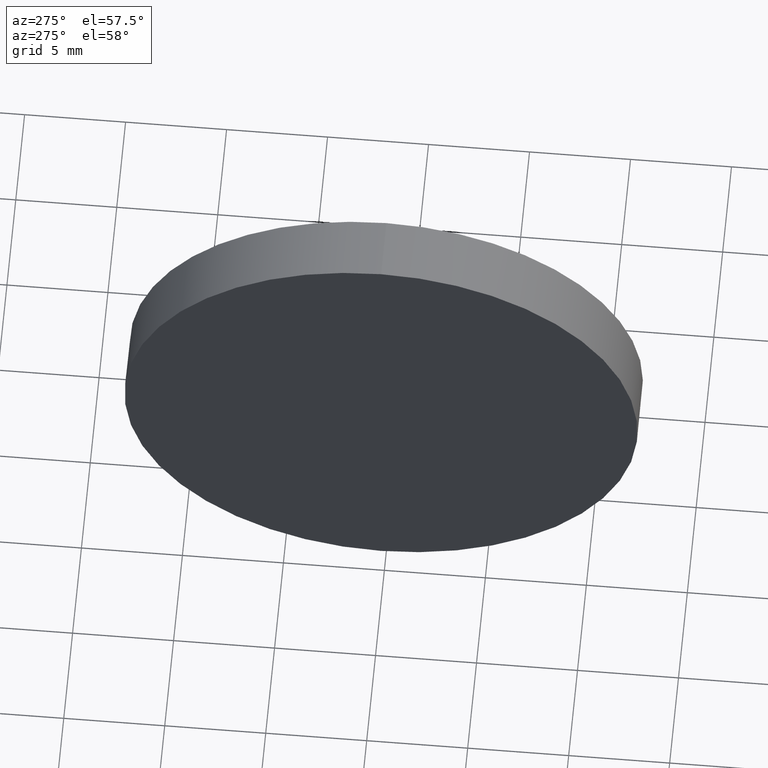
[diagram: clean part render]
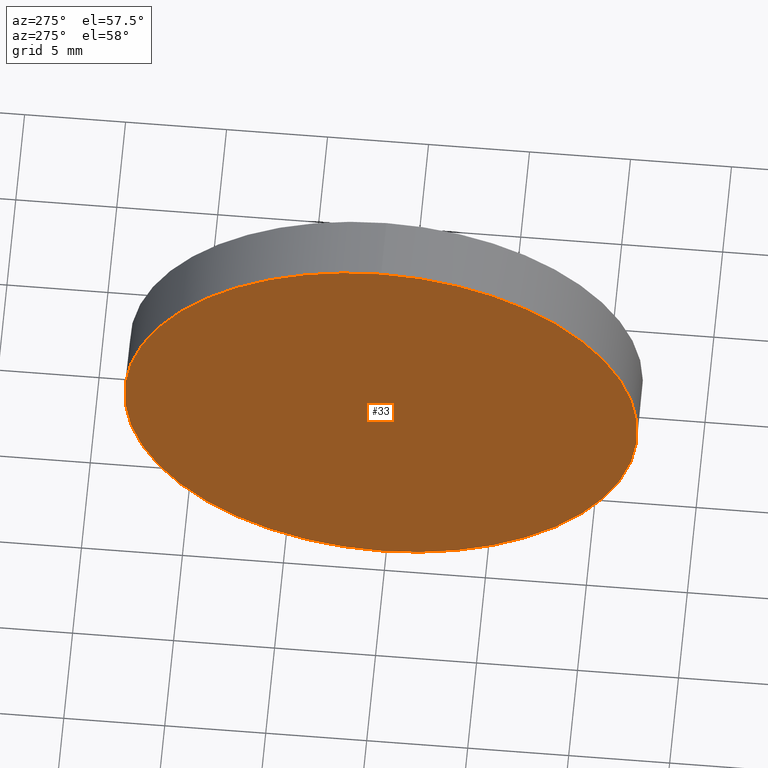
[diagram: same view with one face highlighted and labeled with its STEP entity id]
A machine part, auxiliary view. The second image highlights one B-rep face of the part: STEP entity #33.
In plain terms, the highlighted planar face has unit normal (1, 0, 0).
Its self-contained STEP definition (entity closure, byte-faithful):
#13 = PLANE ( 'NONE',  #126 ) ;
#21 = CARTESIAN_POINT ( 'NONE',  ( 115.7736064308381300, 65.23355492641219700, 0.0000000000000000000 ) ) ;
#28 = EDGE_CURVE ( 'NONE', #76, #54, #32, .T. ) ;
#29 = CARTESIAN_POINT ( 'NONE',  ( 115.7736064308381300, 65.23355492641219700, 0.0000000000000000000 ) ) ;
#32 = CIRCLE ( 'NONE', #49, 12.70000000000000300 ) ;
#33 = ADVANCED_FACE ( 'NONE', ( #120 ), #13, .F. ) ;
#42 = ORIENTED_EDGE ( 'NONE', *, *, #133, .T. ) ;
#43 = DIRECTION ( 'NONE',  ( -1.000000000000000000, -0.0000000000000000000, -0.0000000000000000000 ) ) ;
#49 = AXIS2_PLACEMENT_3D ( 'NONE', #29, #43, #59 ) ;
#54 = VERTEX_POINT ( 'NONE', #73 ) ;
#57 = AXIS2_PLACEMENT_3D ( 'NONE', #21, #65, #160 ) ;
#59 = DIRECTION ( 'NONE',  ( 0.0000000000000000000, 0.0000000000000000000, 1.000000000000000000 ) ) ;
#65 = DIRECTION ( 'NONE',  ( -1.000000000000000000, -0.0000000000000000000, -0.0000000000000000000 ) ) ;
#73 = CARTESIAN_POINT ( 'NONE',  ( 115.7736064308381300, 65.23355492641219700, -12.70000000000000300 ) ) ;
#76 = VERTEX_POINT ( 'NONE', #94 ) ;
#80 = CIRCLE ( 'NONE', #57, 12.70000000000000300 ) ;
#88 = EDGE_LOOP ( 'NONE', ( #164, #42 ) ) ;
#94 = CARTESIAN_POINT ( 'NONE',  ( 115.7736064308381300, 65.23355492641219700, 12.70000000000000300 ) ) ;
#116 = CARTESIAN_POINT ( 'NONE',  ( 115.7736064308381300, 65.23355492641219700, 0.0000000000000000000 ) ) ;
#120 = FACE_OUTER_BOUND ( 'NONE', #88, .T. ) ;
#126 = AXIS2_PLACEMENT_3D ( 'NONE', #116, #173, #158 ) ;
#133 = EDGE_CURVE ( 'NONE', #54, #76, #80, .T. ) ;
#158 = DIRECTION ( 'NONE',  ( 0.0000000000000000000, 0.0000000000000000000, -1.000000000000000000 ) ) ;
#160 = DIRECTION ( 'NONE',  ( 0.0000000000000000000, 0.0000000000000000000, 1.000000000000000000 ) ) ;
#164 = ORIENTED_EDGE ( 'NONE', *, *, #28, .T. ) ;
#173 = DIRECTION ( 'NONE',  ( 1.000000000000000000, 0.0000000000000000000, 0.0000000000000000000 ) ) ;